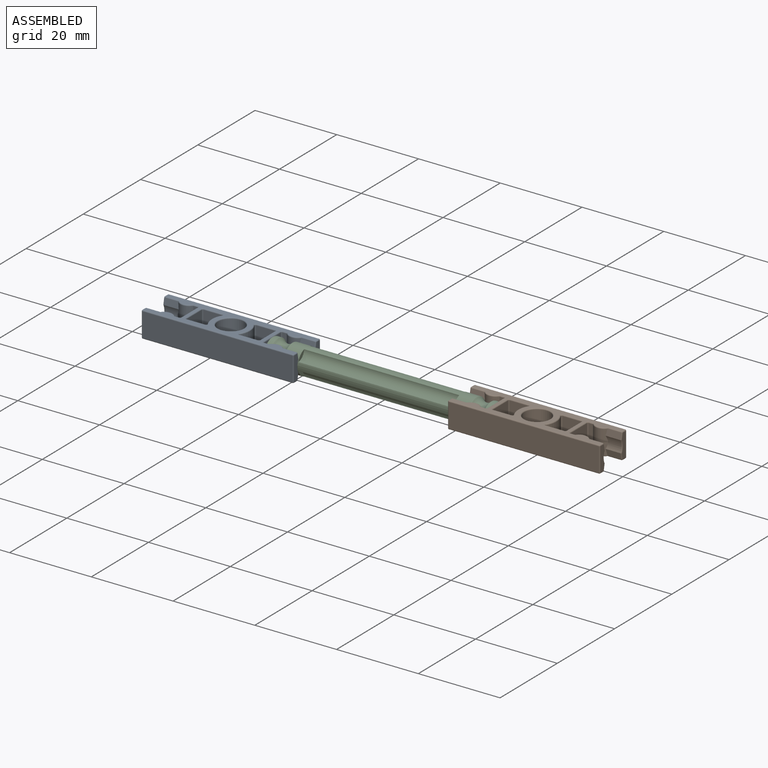
[diagram: assembled view]
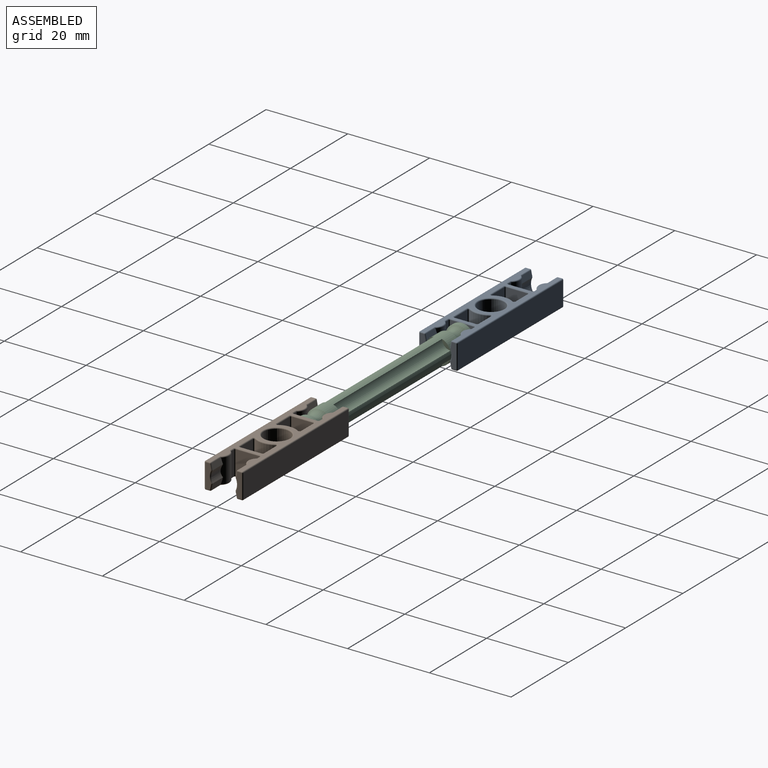
[diagram: assembled view, second angle]
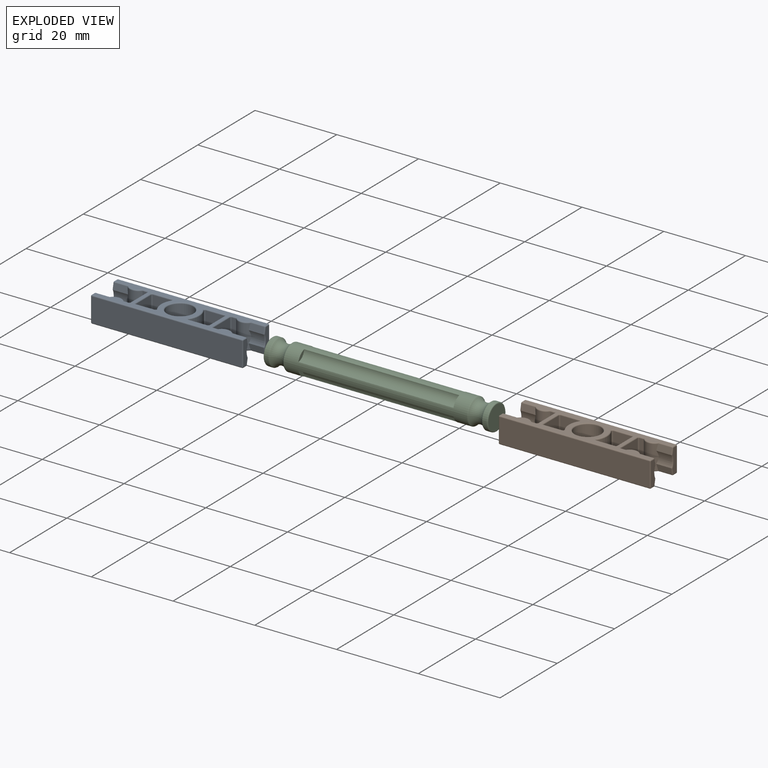
[diagram: exploded view]
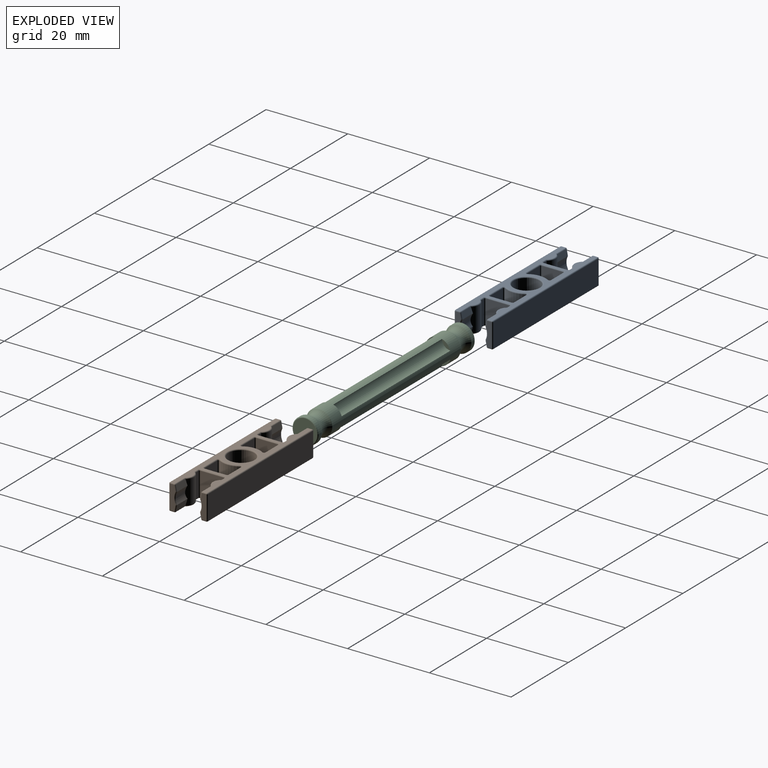
[diagram: exploded view, second angle]
ASSEMBLY  parts=3 mates=2
PART A: 197 faces, bbox 37.3x9.4x6.4 mm
  f0: torus R=0.51mm, axis (0,0,-1), area 0.2mm2, adj f1,f7,f11,f12
  f1: cylinder r=0.25mm len=4.56mm, axis (1,0,0), area 1.8mm2, adj f0,f2,f10,f12
  f2: torus R=0.51mm, axis (0,0,-1), area 0.3mm2, adj f1,f3,f9,f12
  f3: torus R=4.45mm, axis (0,0,1), area 2.1mm2, adj f2,f4,f8,f12
  f4: torus R=0.51mm, axis (0,0,-1), area 0.3mm2, adj f3,f5,f12,f172
  f5: cylinder r=0.25mm len=4.56mm, axis (-1,0,0), area 1.8mm2, adj f4,f6,f12,f33
  f6: torus R=0.51mm, axis (0,0,-1), area 0.2mm2, adj f5,f7,f12,f34
  f7: cylinder r=0.25mm len=5.31mm, axis (0,1,0), area 2.1mm2, adj f0,f6,f12,f35
  f8: cylinder r=4.7mm len=5.84mm, axis (0,0,1), area 31.1mm2, adj f3,f9,f30,f172
  f9: cylinder r=0.25mm len=5.84mm, axis (0,0,1), area 3.2mm2, adj f2,f8,f10,f31
  f10: plane 5.84x4.56mm, normal (0,-1,0), area 26.6mm2, adj f1,f9,f11,f32
  f11: cylinder r=0.25mm len=5.84mm, axis (0,0,1), area 2.3mm2, adj f0,f10,f25,f35
  f12: plane 36.7x8.89mm, normal (0,0,1), area 117.5mm2, adj f0,f1,f2,f3,f4,f5,f6,f7
  f13: torus R=0.51mm, axis (0,0,-1), area 0.2mm2, adj f12,f14,f20,f24
  f14: cylinder r=0.25mm len=4.56mm, axis (-1,0,0), area 1.8mm2, adj f12,f13,f15,f23
  f15: torus R=0.51mm, axis (0,0,-1), area 0.3mm2, adj f12,f14,f16,f22
  f16: torus R=4.45mm, axis (0,0,1), area 2.1mm2, adj f12,f15,f17,f21
  f17: torus R=0.51mm, axis (0,0,-1), area 0.3mm2, adj f12,f16,f18,f173
  f18: cylinder r=0.25mm len=4.56mm, axis (1,0,0), area 1.8mm2, adj f12,f17,f19,f45
  f19: torus R=0.51mm, axis (0,0,-1), area 0.2mm2, adj f12,f18,f20,f46
  f20: cylinder r=0.25mm len=5.31mm, axis (0,-1,0), area 2.1mm2, adj f12,f13,f19,f47
  f21: cylinder r=4.7mm len=5.84mm, axis (0,0,1), area 31.1mm2, adj f16,f22,f42,f173
  f22: cylinder r=0.25mm len=5.84mm, axis (0,0,1), area 3.2mm2, adj f15,f21,f23,f43
  f23: plane 5.84x4.56mm, normal (0,1,0), area 26.6mm2, adj f14,f22,f24,f44
  f24: cylinder r=0.25mm len=5.84mm, axis (0,0,1), area 2.3mm2, adj f13,f23,f37,f47
  f25: torus R=0.51mm, axis (0,0,1), area 0.2mm2, adj f11,f26,f32,f36
  f26: cylinder r=0.25mm len=5.31mm, axis (0,-1,0), area 2.1mm2, adj f25,f27,f35,f36
  f27: torus R=0.51mm, axis (0,0,1), area 0.2mm2, adj f26,f28,f34,f36
  f28: cylinder r=0.25mm len=4.56mm, axis (1,0,0), area 1.8mm2, adj f27,f29,f33,f36
  f29: torus R=0.51mm, axis (0,0,1), area 0.3mm2, adj f28,f30,f36,f172
  f30: torus R=4.45mm, axis (0,0,-1), area 2.1mm2, adj f8,f29,f31,f36
  f31: torus R=0.51mm, axis (0,0,1), area 0.3mm2, adj f9,f30,f32,f36
  f32: cylinder r=0.25mm len=4.56mm, axis (-1,0,0), area 1.8mm2, adj f10,f25,f31,f36
  f33: plane 5.84x4.56mm, normal (0,1,0), area 26.6mm2, adj f5,f28,f34,f172
  f34: cylinder r=0.25mm len=5.84mm, axis (0,0,1), area 2.3mm2, adj f6,f27,f33,f35
  f35: plane 5.84x5.31mm, normal (1,0,0), area 31mm2, adj f7,f11,f26,f34
  f36: plane 36.7x8.89mm, normal (0,0,-1), area 117.5mm2, adj f25,f26,f27,f28,f29,f30,f31,f32
  f37: torus R=0.51mm, axis (0,0,1), area 0.2mm2, adj f24,f36,f38,f44
  f38: cylinder r=0.25mm len=5.31mm, axis (0,1,0), area 2.1mm2, adj f36,f37,f39,f47
  f39: torus R=0.51mm, axis (0,0,1), area 0.2mm2, adj f36,f38,f40,f46
  f40: cylinder r=0.25mm len=4.56mm, axis (-1,0,0), area 1.8mm2, adj f36,f39,f41,f45
  f41: torus R=0.51mm, axis (0,0,1), area 0.3mm2, adj f36,f40,f42,f173
  f42: torus R=4.45mm, axis (0,0,-1), area 2.1mm2, adj f21,f36,f41,f43
  f43: torus R=0.51mm, axis (0,0,1), area 0.3mm2, adj f22,f36,f42,f44
  f44: cylinder r=0.25mm len=4.56mm, axis (1,0,0), area 1.8mm2, adj f23,f36,f37,f43
  f45: plane 5.84x4.56mm, normal (0,-1,0), area 26.6mm2, adj f18,f40,f46,f173
  f46: cylinder r=0.25mm len=5.84mm, axis (0,0,1), area 2.3mm2, adj f19,f39,f45,f47
  f47: plane 5.84x5.31mm, normal (-1,0,0), area 31mm2, adj f20,f24,f38,f46
  f48: torus R=3.43mm, axis (0,0,-1), area 8.2mm2, adj f12,f49
  f49: cylinder r=3.17mm len=6.35mm, axis (0,0,1), area 116.5mm2, adj f48,f171
  f50: sphere r=0.25mm, area 0.1mm2, adj f53,f142,f145
  f51: sphere r=0.25mm, area 0.1mm2, adj f56,f138,f145
  f52: sphere r=0.25mm, area 0.1mm2, adj f53,f58,f144
  f53: cylinder r=0.25mm len=1.06mm, axis (0,-1,0), area 0.4mm2, adj f12,f50,f52,f165
  f54: sphere r=0.25mm, area 0.1mm2, adj f60,f139,f142
  f55: sphere r=0.25mm, area 0.1mm2, adj f56,f137,f141
  f56: cylinder r=0.25mm len=1.06mm, axis (0,-1,0), area 0.4mm2, adj f12,f51,f55,f166
  f57: sphere r=0.25mm, area 0.1mm2, adj f64,f138,f139
  f58: cylinder r=0.25mm len=3.37mm, axis (-1,0,0), area 1.2mm2, adj f12,f52,f65,f176
  f59: sphere r=0.25mm, area 0.1mm2, adj f60,f61,f136
  f60: cylinder r=0.25mm len=1.06mm, axis (0,-1,0), area 0.4mm2, adj f36,f54,f59,f165
  f61: cylinder r=0.25mm len=1.57mm, axis (0,0.2,0.98), area 0.6mm2, adj f59,f143,f165,f175
  f62: sphere r=0.25mm, area 0.1mm2, adj f63,f64,f76
  f63: cylinder r=0.25mm len=1.57mm, axis (0,0.2,0.98), area 0.6mm2, adj f62,f140,f161,f166
  f64: cylinder r=0.25mm len=1.06mm, axis (0,1,0), area 0.4mm2, adj f36,f57,f62,f166
  f65: torus R=0.51mm, axis (0,0,1), area 0mm2, adj f12,f58,f66,f146,f176
  f66: torus R=1.97mm, axis (0,0,1), area 1.5mm2, adj f12,f65,f67,f147
  f67: torus R=0.51mm, axis (0,0,1), area 0.1mm2, adj f12,f66,f68,f148
  f68: cylinder r=0.25mm len=1mm, axis (-1,0,0), area 0.4mm2, adj f12,f67,f69,f149
  f69: torus R=0.51mm, axis (0,0,1), area 0.2mm2, adj f12,f68,f70,f150
  f70: cylinder r=0.25mm len=5.84mm, axis (0,-1,0), area 2.3mm2, adj f12,f69,f71,f151
  f71: torus R=0.51mm, axis (0,0,1), area 0.2mm2, adj f12,f70,f72,f153
  f72: cylinder r=0.25mm len=1mm, axis (1,0,0), area 0.4mm2, adj f12,f71,f73,f154
  f73: torus R=0.51mm, axis (0,0,1), area 0.1mm2, adj f12,f72,f74,f156
  f74: torus R=1.97mm, axis (0,0,1), area 1.5mm2, adj f12,f73,f75,f157
  f75: torus R=0.51mm, axis (0,0,1), area 0mm2, adj f12,f74,f124,f152,f155
  f76: cylinder r=0.25mm len=3.37mm, axis (1,0,0), area 1.2mm2, adj f36,f62,f79,f161
  f77: sphere r=0.25mm, area 0.1mm2, adj f107,f123,f124
  f78: sphere r=0.25mm, area 0.1mm2, adj f96,f109,f110
  f79: torus R=0.51mm, axis (0,0,-1), area 0mm2, adj f36,f76,f80,f161,f162
  f80: torus R=1.97mm, axis (0,0,-1), area 1.5mm2, adj f36,f79,f81,f189
  f81: torus R=0.51mm, axis (0,0,-1), area 0.1mm2, adj f36,f80,f82,f188
  f82: cylinder r=0.25mm len=1mm, axis (1,0,0), area 0.4mm2, adj f36,f81,f83,f191
  f83: torus R=0.51mm, axis (0,0,-1), area 0.2mm2, adj f36,f82,f84,f190
  f84: cylinder r=0.25mm len=5.84mm, axis (0,-1,0), area 2.3mm2, adj f36,f83,f85,f193
  f85: torus R=0.51mm, axis (0,0,-1), area 0.2mm2, adj f36,f84,f86,f192
  f86: cylinder r=0.25mm len=1mm, axis (-1,0,0), area 0.4mm2, adj f36,f85,f87,f195
  f87: torus R=0.51mm, axis (0,0,-1), area 0.1mm2, adj f36,f86,f88,f194
  f88: torus R=1.97mm, axis (0,0,-1), area 1.5mm2, adj f36,f87,f89,f196
  f89: torus R=0.51mm, axis (0,0,-1), area 0mm2, adj f36,f88,f106,f163,f164
  f90: sphere r=0.25mm, area 0.1mm2, adj f95,f100,f107
  f91: sphere r=0.25mm, area 0.1mm2, adj f92,f93,f99
  f92: cylinder r=0.25mm len=3.37mm, axis (-1,0,0), area 1.2mm2, adj f36,f91,f111,f159
  f93: cylinder r=0.25mm len=1.57mm, axis (0,-0.2,0.98), area 0.6mm2, adj f91,f122,f159,f167
  f94: sphere r=0.25mm, area 0.1mm2, adj f95,f96,f102
  f95: cylinder r=0.25mm len=36.7mm, axis (-1,0,0), area 14.6mm2, adj f12,f90,f94,f168
  f96: cylinder r=0.25mm len=1.06mm, axis (0,1,0), area 0.4mm2, adj f12,f78,f94,f169
  f97: sphere r=0.25mm, area 0.1mm2, adj f103,f105,f106
  f98: sphere r=0.25mm, area 0.1mm2, adj f99,f100,f104
  f99: cylinder r=0.25mm len=1.06mm, axis (0,-1,0), area 0.4mm2, adj f36,f91,f98,f167
  f100: cylinder r=0.25mm len=5.84mm, axis (0,0,-1), area 2.3mm2, adj f90,f98,f167,f168
  f101: sphere r=0.25mm, area 0.1mm2, adj f102,f103,f104
  f102: cylinder r=0.25mm len=5.84mm, axis (0,0,1), area 2.3mm2, adj f94,f101,f168,f169
  f103: cylinder r=0.25mm len=1.06mm, axis (0,1,0), area 0.4mm2, adj f36,f97,f101,f169
  f104: cylinder r=0.25mm len=36.7mm, axis (-1,0,0), area 14.6mm2, adj f36,f98,f101,f168
  f105: cylinder r=0.25mm len=1.57mm, axis (0,-0.2,0.98), area 0.6mm2, adj f97,f108,f164,f169
  f106: cylinder r=0.25mm len=3.37mm, axis (-1,0,0), area 1.2mm2, adj f36,f89,f97,f164
  f107: cylinder r=0.25mm len=1.06mm, axis (0,1,0), area 0.4mm2, adj f12,f77,f90,f167
  f108: torus R=3.43mm, axis (1,0,0), area 1.2mm2, adj f105,f109,f169,f182
  f109: cylinder r=0.25mm len=1.57mm, axis (0,0.2,0.98), area 0.6mm2, adj f78,f108,f169,f183
  f110: cylinder r=0.25mm len=3.37mm, axis (1,0,0), area 1.2mm2, adj f12,f78,f125,f183
  f111: torus R=0.51mm, axis (0,0,-1), area 0mm2, adj f36,f92,f112,f159,f177
  f112: torus R=1.97mm, axis (0,0,-1), area 1.5mm2, adj f36,f111,f113,f157
  f113: torus R=0.51mm, axis (0,0,-1), area 0.1mm2, adj f36,f112,f114,f156
  f114: cylinder r=0.25mm len=1mm, axis (-1,0,0), area 0.4mm2, adj f36,f113,f115,f154
  f115: torus R=0.51mm, axis (0,0,-1), area 0.2mm2, adj f36,f114,f116,f153
  f116: cylinder r=0.25mm len=5.84mm, axis (0,1,0), area 2.3mm2, adj f36,f115,f117,f151
  f117: torus R=0.51mm, axis (0,0,-1), area 0.2mm2, adj f36,f116,f118,f150
  f118: cylinder r=0.25mm len=1mm, axis (1,0,0), area 0.4mm2, adj f36,f117,f119,f149
  f119: torus R=0.51mm, axis (0,0,-1), area 0.1mm2, adj f36,f118,f120,f148
  f120: torus R=1.97mm, axis (0,0,-1), area 1.5mm2, adj f36,f119,f121,f147
  f121: torus R=0.51mm, axis (0,0,-1), area 0mm2, adj f36,f120,f136,f175,f179
  f122: torus R=3.43mm, axis (1,0,0), area 1.2mm2, adj f93,f123,f158,f167
  f123: cylinder r=0.25mm len=1.57mm, axis (0,0.2,0.98), area 0.6mm2, adj f77,f122,f155,f167
  f124: cylinder r=0.25mm len=3.37mm, axis (1,0,0), area 1.2mm2, adj f12,f75,f77,f155
  f125: torus R=0.51mm, axis (0,0,1), area 0mm2, adj f12,f110,f126,f183,f187
  f126: torus R=1.97mm, axis (0,0,1), area 1.5mm2, adj f12,f125,f127,f196
  f127: torus R=0.51mm, axis (0,0,1), area 0.1mm2, adj f12,f126,f128,f194
  f128: cylinder r=0.25mm len=1mm, axis (1,0,0), area 0.4mm2, adj f12,f127,f129,f195
  f129: torus R=0.51mm, axis (0,0,1), area 0.2mm2, adj f12,f128,f130,f192
  f130: cylinder r=0.25mm len=5.84mm, axis (0,1,0), area 2.3mm2, adj f12,f129,f131,f193
  f131: torus R=0.51mm, axis (0,0,1), area 0.2mm2, adj f12,f130,f132,f190
  f132: cylinder r=0.25mm len=1mm, axis (-1,0,0), area 0.4mm2, adj f12,f131,f133,f191
  f133: torus R=0.51mm, axis (0,0,1), area 0.1mm2, adj f12,f132,f134,f188
  f134: torus R=1.97mm, axis (0,0,1), area 1.5mm2, adj f12,f133,f135,f189
  f135: torus R=0.51mm, axis (0,0,1), area 0mm2, adj f12,f134,f137,f181,f184
  f136: cylinder r=0.25mm len=3.37mm, axis (1,0,0), area 1.2mm2, adj f36,f59,f121,f175
  f137: cylinder r=0.25mm len=3.37mm, axis (-1,0,0), area 1.2mm2, adj f12,f55,f135,f181
  f138: cylinder r=0.25mm len=5.84mm, axis (0,0,-1), area 2.3mm2, adj f51,f57,f166,f170
  f139: cylinder r=0.25mm len=36.7mm, axis (1,0,0), area 14.6mm2, adj f36,f54,f57,f170
  f140: torus R=3.43mm, axis (-1,0,0), area 1.2mm2, adj f63,f141,f160,f166
  f141: cylinder r=0.25mm len=1.57mm, axis (0,-0.2,0.98), area 0.6mm2, adj f55,f140,f166,f181
  f142: cylinder r=0.25mm len=5.84mm, axis (0,0,1), area 2.3mm2, adj f50,f54,f165,f170
  f143: torus R=3.43mm, axis (-1,0,0), area 1.2mm2, adj f61,f144,f165,f174
  f144: cylinder r=0.25mm len=1.57mm, axis (0,-0.2,0.98), area 0.6mm2, adj f52,f143,f165,f176
  f145: cylinder r=0.25mm len=36.7mm, axis (1,0,0), area 14.6mm2, adj f12,f50,f51,f170
  f146: cylinder r=0.25mm len=0.19mm, axis (0,0,-1), area 0mm2, adj f65,f147,f176
  f147: cylinder r=2.22mm len=5.84mm, axis (0,0,-1), area 22mm2, adj f66,f120,f146,f148,f174,f175,f176,f179
  f148: cylinder r=0.25mm len=5.84mm, axis (0,0,-1), area 1.3mm2, adj f67,f119,f147,f149
  f149: plane 5.84x1mm, normal (0,1,0), area 5.9mm2, adj f68,f118,f148,f150
  f150: cylinder r=0.25mm len=5.84mm, axis (0,0,-1), area 2.3mm2, adj f69,f117,f149,f151
  f151: plane 5.84x5.84mm, normal (-1,0,0), area 34.1mm2, adj f70,f116,f150,f153
  f152: cylinder r=0.25mm len=0.19mm, axis (0,0,-1), area 0mm2, adj f75,f155,f157
  f153: cylinder r=0.25mm len=5.84mm, axis (0,0,-1), area 2.3mm2, adj f71,f115,f151,f154
  f154: plane 5.84x1mm, normal (0,-1,0), area 5.9mm2, adj f72,f114,f153,f156
  f155: plane 3.66x1.57mm, normal (0,-0.98,0.2), area 5.4mm2, adj f75,f123,f124,f152,f157,f158
  f156: cylinder r=0.25mm len=5.84mm, axis (0,0,-1), area 1.3mm2, adj f73,f113,f154,f157
  f157: cylinder r=2.22mm len=5.84mm, axis (0,0,-1), area 22mm2, adj f74,f112,f152,f155,f156,f158,f159,f177
  f158: cylinder r=3.17mm len=3.61mm, axis (1,0,0), area 10.1mm2, adj f122,f155,f157,f159,f178
  f159: plane 3.66x1.57mm, normal (0,-0.98,-0.2), area 5.4mm2, adj f92,f93,f111,f157,f158,f177
  f160: cylinder r=3.17mm len=3.61mm, axis (-1,0,0), area 10.1mm2, adj f140,f161,f181,f185,f189
  f161: plane 3.66x1.57mm, normal (0,0.98,-0.2), area 5.4mm2, adj f63,f76,f79,f160,f162,f189
  f162: cylinder r=0.25mm len=0.19mm, axis (0,0,-1), area 0mm2, adj f79,f161,f189
  f163: cylinder r=0.25mm len=0.19mm, axis (0,0,-1), area 0mm2, adj f89,f164,f196
  f164: plane 3.66x1.57mm, normal (0,-0.98,-0.2), area 5.4mm2, adj f89,f105,f106,f163,f182,f196
  f165: plane 5.84x1.35mm, normal (-1,0,0), area 6.8mm2, adj f53,f60,f61,f142,f143,f144
  f166: plane 5.84x1.35mm, normal (1,0,0), area 6.8mm2, adj f56,f63,f64,f138,f140,f141
  f167: plane 5.84x1.35mm, normal (-1,0,0), area 6.8mm2, adj f93,f99,f100,f107,f122,f123
  f168: plane 36.7x5.84mm, normal (0,1,0), area 214.4mm2, adj f95,f100,f102,f104
  f169: plane 5.84x1.35mm, normal (1,0,0), area 6.8mm2, adj f96,f102,f103,f105,f108,f109
  f170: plane 36.7x5.84mm, normal (0,-1,0), area 214.4mm2, adj f138,f139,f142,f145
  f171: torus R=3.43mm, axis (0,0,1), area 8.2mm2, adj f36,f49
  f172: cylinder r=0.25mm len=5.84mm, axis (0,0,1), area 3.2mm2, adj f4,f8,f29,f33
  f173: cylinder r=0.25mm len=5.84mm, axis (0,0,1), area 3.2mm2, adj f17,f21,f41,f45
  f174: cylinder r=3.17mm len=3.61mm, axis (1,0,0), area 10.1mm2, adj f143,f147,f175,f176,f180
  f175: plane 3.66x1.57mm, normal (0,0.98,-0.2), area 5.4mm2, adj f61,f121,f136,f147,f174,f179
  f176: plane 3.66x1.57mm, normal (0,0.98,0.2), area 5.4mm2, adj f58,f65,f144,f146,f147,f174
  f177: cylinder r=0.25mm len=0.19mm, axis (0,0,-1), area 0mm2, adj f111,f157,f159
  f178: cylinder r=0.25mm len=1.51mm, axis (0,0,-1), area 0.2mm2, adj f157,f158
  f179: cylinder r=0.25mm len=0.19mm, axis (0,0,-1), area 0mm2, adj f121,f147,f175
  f180: cylinder r=0.25mm len=1.51mm, axis (0,0,-1), area 0.2mm2, adj f147,f174
  f181: plane 3.66x1.57mm, normal (0,0.98,0.2), area 5.4mm2, adj f135,f137,f141,f160,f184,f189
  f182: cylinder r=3.17mm len=3.61mm, axis (-1,0,0), area 10.1mm2, adj f108,f164,f183,f186,f196
  f183: plane 3.66x1.57mm, normal (0,-0.98,0.2), area 5.4mm2, adj f109,f110,f125,f182,f187,f196
  f184: cylinder r=0.25mm len=0.19mm, axis (0,0,-1), area 0mm2, adj f135,f181,f189
  f185: cylinder r=0.25mm len=1.51mm, axis (0,0,-1), area 0.2mm2, adj f160,f189
  f186: cylinder r=0.25mm len=1.51mm, axis (0,0,-1), area 0.2mm2, adj f182,f196
  f187: cylinder r=0.25mm len=0.19mm, axis (0,0,-1), area 0mm2, adj f125,f183,f196
  f188: cylinder r=0.25mm len=5.84mm, axis (0,0,-1), area 1.3mm2, adj f81,f133,f189,f191
  f189: cylinder r=2.22mm len=5.84mm, axis (0,0,-1), area 22mm2, adj f80,f134,f160,f161,f162,f181,f184,f185
  f190: cylinder r=0.25mm len=5.84mm, axis (0,0,-1), area 2.3mm2, adj f83,f131,f191,f193
  f191: plane 5.84x1mm, normal (0,1,0), area 5.9mm2, adj f82,f132,f188,f190
  f192: cylinder r=0.25mm len=5.84mm, axis (0,0,-1), area 2.3mm2, adj f85,f129,f193,f195
  f193: plane 5.84x5.84mm, normal (1,0,0), area 34.1mm2, adj f84,f130,f190,f192
  f194: cylinder r=0.25mm len=5.84mm, axis (0,0,-1), area 1.3mm2, adj f87,f127,f195,f196
  f195: plane 5.84x1mm, normal (0,-1,0), area 5.9mm2, adj f86,f128,f192,f194
  f196: cylinder r=2.22mm len=5.84mm, axis (0,0,-1), area 22mm2, adj f88,f126,f163,f164,f182,f183,f186,f187
PART B: same geometry as A
PART C: 25 faces, bbox 9.8x9.8x54.9 mm
  f0: torus R=2.92mm, axis (0,0,1), area 7.7mm2, adj f1,f2
  f1: cylinder r=3.17mm len=6.35mm, axis (0,0,-1), area 20mm2, adj f0,f3
  f2: plane 5.84x5.84mm, normal (0,0,-1), area 26.8mm2, adj f0
  f3: torus R=2.92mm, axis (0,0,1), area 4.4mm2, adj f1,f8
  f4: torus R=2.92mm, axis (0,0,1), area 4.4mm2, adj f8,f15
  f5: plane 2.05x2.05mm, normal (0,0,1), area 1.8mm2, adj f15,f19
  f6: plane 2.05x2.05mm, normal (0,0,1), area 1.8mm2, adj f15,f18
  f7: plane 2.05x2.05mm, normal (0,0,1), area 1.8mm2, adj f15,f16
  f8: torus R=4.51mm, axis (0,0,1), area 62.5mm2, adj f3,f4
  f9: plane 2.05x2.05mm, normal (0,0,1), area 1.8mm2, adj f15,f17
  f10: torus R=2.92mm, axis (0,0,-1), area 7.7mm2, adj f11,f12
  f11: cylinder r=3.17mm len=6.35mm, axis (0,0,-1), area 20mm2, adj f10,f13
  f12: plane 5.84x5.84mm, normal (0,0,1), area 26.8mm2, adj f10
  f13: torus R=2.92mm, axis (0,0,-1), area 4.4mm2, adj f11,f23
  f14: torus R=2.92mm, axis (0,0,-1), area 4.4mm2, adj f15,f23
  f15: cylinder r=3.17mm len=44.8mm, axis (0,0,-1), area 436.5mm2, adj f4,f5,f6,f7,f9,f14,f16,f17
  f16: cylinder r=2.22mm len=37.95mm, axis (0,0,-1), area 119.9mm2, adj f7,f15,f22
  f17: cylinder r=2.22mm len=37.95mm, axis (0,0,-1), area 119.9mm2, adj f9,f15,f24
  f18: cylinder r=2.22mm len=37.95mm, axis (0,0,-1), area 119.9mm2, adj f6,f15,f21
  f19: cylinder r=2.22mm len=37.95mm, axis (0,0,-1), area 119.9mm2, adj f5,f15,f20
  f20: plane 2.05x2.05mm, normal (0,0,-1), area 1.8mm2, adj f15,f19
  f21: plane 2.05x2.05mm, normal (0,0,-1), area 1.8mm2, adj f15,f18
  f22: plane 2.05x2.05mm, normal (0,0,-1), area 1.8mm2, adj f15,f16
  f23: torus R=4.51mm, axis (0,0,-1), area 62.5mm2, adj f13,f14
  f24: plane 2.05x2.05mm, normal (0,0,-1), area 1.8mm2, adj f15,f17
PLACE A t=(-35.88,0,-31.5)mm
PLACE B rot(axis=(0,1,0),180deg) t=(39.05,0,-25.15)mm
PLACE C rot(axis=(0,1,0),90deg) t=(29.17,0,-25.15)mm
MATE fastened B.f108 <-> C.f10  axis (-1,0,0) through (28.92,0,-28.33)mm
MATE fastened A.f108 <-> C.f10  axis (1,0,0) through (-25.74,0,-28.33)mm
